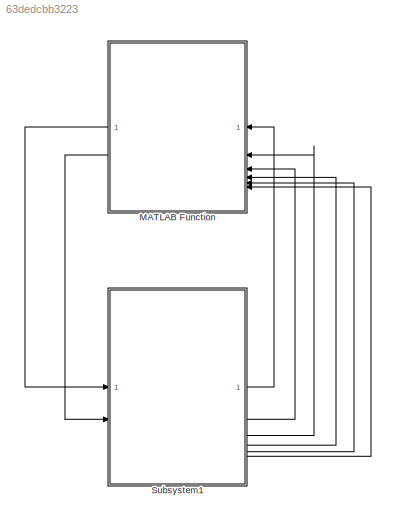
MODEL slx_63dedcbb3223
KIND model
CONFIG AbsTol = 1e-3
CONFIG EnableMultiTasking = on
CONFIG FixedStep = auto
CONFIG MaxStep = auto
CONFIG MinStep = auto
CONFIG RelTol = 1e-3
CONFIG SampleTimeConstraint = Unconstrained
CONFIG SolverName = VariableStepAuto
CONFIG StartTime = 0.0
CONFIG StopTime = 100.0
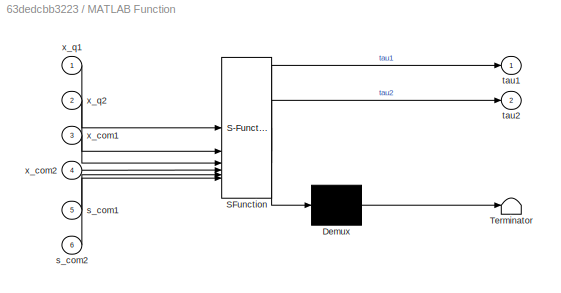
BLOCK [SubSystem] MATLAB Function
  ErrorFcn = Stateflow.Translate.translate
  LibrarySourceBlock = simulink/User-Defined\nFunctions/MATLAB Function
  PermitHierarchicalResolution = ExplicitOnly
  SFBlockType = MATLAB Function
  TreatAsAtomicUnit = on
BLOCK [Demux] MATLAB Function/ Demux 
  Outputs = 1
BLOCK [S-Function] MATLAB Function/ SFunction 
  EnableBusSupport = on
  FunctionName = sf_sfun
  PortCounts = [6 3]
  SFcnIsStateOwnerBlock = off
  SFunctionDeploymentMode = off
  Tag = Stateflow S-Function 2
BLOCK [Terminator] MATLAB Function/ Terminator 
BLOCK [Inport] MATLAB Function/s_com1
  Port = 5
BLOCK [Inport] MATLAB Function/s_com2
  Port = 6
BLOCK [Outport] MATLAB Function/tau1
BLOCK [Outport] MATLAB Function/tau2
  Port = 2
BLOCK [Inport] MATLAB Function/x_com1
  Port = 3
BLOCK [Inport] MATLAB Function/x_com2
  Port = 4
BLOCK [Inport] MATLAB Function/x_q1
BLOCK [Inport] MATLAB Function/x_q2
  Port = 2
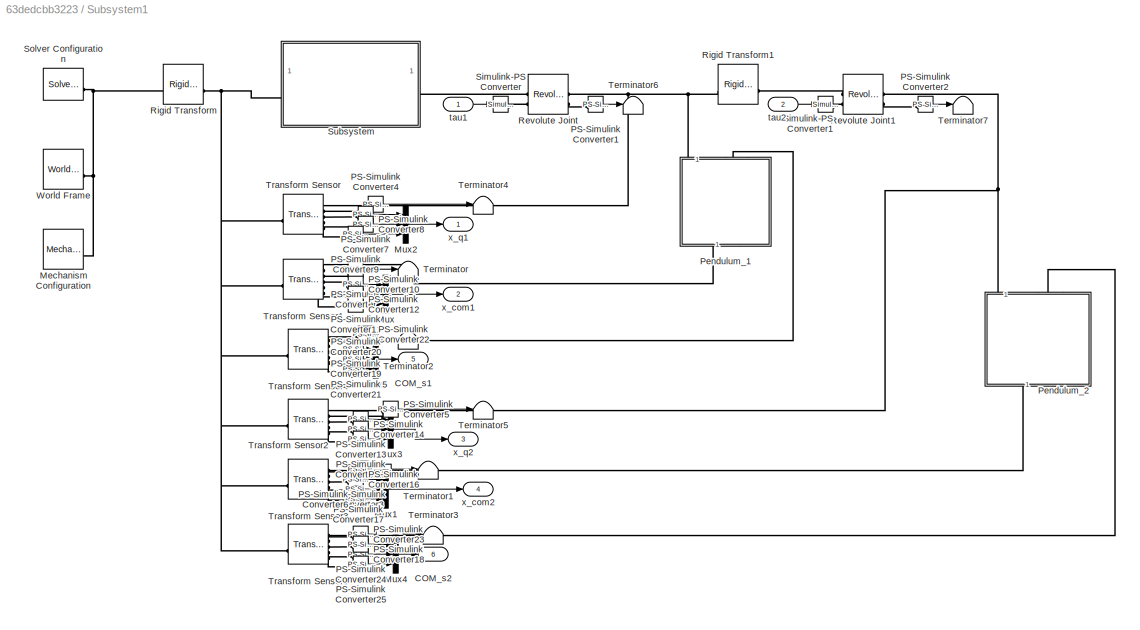
BLOCK [SubSystem] Subsystem1
BLOCK [Outport] Subsystem1/COM_s1
  Port = 5
BLOCK [Outport] Subsystem1/COM_s2
  Port = 6
BLOCK [Reference] Subsystem1/Mechanism Configuration  REF=sm_lib/Utilities/Mechanism
Configuration
  SourceBlock = sm_lib/Utilities/Mechanism\nConfiguration
  SourceType = Mechanism\nConfiguration
BLOCK [Mux] Subsystem1/Mux
  DisplayOption = bar
  Inputs = 3
BLOCK [Mux] Subsystem1/Mux1
  DisplayOption = bar
  Inputs = 3
BLOCK [Mux] Subsystem1/Mux2
  DisplayOption = bar
  Inputs = 3
BLOCK [Mux] Subsystem1/Mux3
  DisplayOption = bar
  Inputs = 3
BLOCK [Mux] Subsystem1/Mux4
  DisplayOption = bar
  Inputs = 3
BLOCK [Mux] Subsystem1/Mux5
  DisplayOption = bar
  Inputs = 3
BLOCK [Reference] Subsystem1/PS-Simulink Converter  REF=nesl_utility/PS-Simulink
Converter
  SourceBlock = nesl_utility/PS-Simulink\nConverter
  SourceType = PS-Simulink\nConverter
BLOCK [Reference] Subsystem1/PS-Simulink Converter1  REF=nesl_utility/PS-Simulink
Converter
  SourceBlock = nesl_utility/PS-Simulink\nConverter
  SourceType = PS-Simulink\nConverter
BLOCK [Reference] Subsystem1/PS-Simulink Converter10  REF=nesl_utility/PS-Simulink
Converter
  SourceBlock = nesl_utility/PS-Simulink\nConverter
  SourceType = PS-Simulink\nConverter
BLOCK [Reference] Subsystem1/PS-Simulink Converter11  REF=nesl_utility/PS-Simulink
Converter
  SourceBlock = nesl_utility/PS-Simulink\nConverter
  SourceType = PS-Simulink\nConverter
BLOCK [Reference] Subsystem1/PS-Simulink Converter12  REF=nesl_utility/PS-Simulink
Converter
  SourceBlock = nesl_utility/PS-Simulink\nConverter
  SourceType = PS-Simulink\nConverter
BLOCK [Reference] Subsystem1/PS-Simulink Converter13  REF=nesl_utility/PS-Simulink
Converter
  SourceBlock = nesl_utility/PS-Simulink\nConverter
  SourceType = PS-Simulink\nConverter
BLOCK [Reference] Subsystem1/PS-Simulink Converter14  REF=nesl_utility/PS-Simulink
Converter
  SourceBlock = nesl_utility/PS-Simulink\nConverter
  SourceType = PS-Simulink\nConverter
BLOCK [Reference] Subsystem1/PS-Simulink Converter15  REF=nesl_utility/PS-Simulink
Converter
  SourceBlock = nesl_utility/PS-Simulink\nConverter
  SourceType = PS-Simulink\nConverter
BLOCK [Reference] Subsystem1/PS-Simulink Converter16  REF=nesl_utility/PS-Simulink
Converter
  SourceBlock = nesl_utility/PS-Simulink\nConverter
  SourceType = PS-Simulink\nConverter
BLOCK [Reference] Subsystem1/PS-Simulink Converter17  REF=nesl_utility/PS-Simulink
Converter
  SourceBlock = nesl_utility/PS-Simulink\nConverter
  SourceType = PS-Simulink\nConverter
BLOCK [Reference] Subsystem1/PS-Simulink Converter18  REF=nesl_utility/PS-Simulink
Converter
  SourceBlock = nesl_utility/PS-Simulink\nConverter
  SourceType = PS-Simulink\nConverter
BLOCK [Reference] Subsystem1/PS-Simulink Converter19  REF=nesl_utility/PS-Simulink
Converter
  SourceBlock = nesl_utility/PS-Simulink\nConverter
  SourceType = PS-Simulink\nConverter
BLOCK [Reference] Subsystem1/PS-Simulink Converter2  REF=nesl_utility/PS-Simulink
Converter
  SourceBlock = nesl_utility/PS-Simulink\nConverter
  SourceType = PS-Simulink\nConverter
BLOCK [Reference] Subsystem1/PS-Simulink Converter20  REF=nesl_utility/PS-Simulink
Converter
  SourceBlock = nesl_utility/PS-Simulink\nConverter
  SourceType = PS-Simulink\nConverter
BLOCK [Reference] Subsystem1/PS-Simulink Converter21  REF=nesl_utility/PS-Simulink
Converter
  SourceBlock = nesl_utility/PS-Simulink\nConverter
  SourceType = PS-Simulink\nConverter
BLOCK [Reference] Subsystem1/PS-Simulink Converter22  REF=nesl_utility/PS-Simulink
Converter
  SourceBlock = nesl_utility/PS-Simulink\nConverter
  SourceType = PS-Simulink\nConverter
BLOCK [Reference] Subsystem1/PS-Simulink Converter23  REF=nesl_utility/PS-Simulink
Converter
  SourceBlock = nesl_utility/PS-Simulink\nConverter
  SourceType = PS-Simulink\nConverter
BLOCK [Reference] Subsystem1/PS-Simulink Converter24  REF=nesl_utility/PS-Simulink
Converter
  SourceBlock = nesl_utility/PS-Simulink\nConverter
  SourceType = PS-Simulink\nConverter
BLOCK [Reference] Subsystem1/PS-Simulink Converter25  REF=nesl_utility/PS-Simulink
Converter
  SourceBlock = nesl_utility/PS-Simulink\nConverter
  SourceType = PS-Simulink\nConverter
BLOCK [Reference] Subsystem1/PS-Simulink Converter3  REF=nesl_utility/PS-Simulink
Converter
  SourceBlock = nesl_utility/PS-Simulink\nConverter
  SourceType = PS-Simulink\nConverter
BLOCK [Reference] Subsystem1/PS-Simulink Converter4  REF=nesl_utility/PS-Simulink
Converter
  SourceBlock = nesl_utility/PS-Simulink\nConverter
  SourceType = PS-Simulink\nConverter
BLOCK [Reference] Subsystem1/PS-Simulink Converter5  REF=nesl_utility/PS-Simulink
Converter
  SourceBlock = nesl_utility/PS-Simulink\nConverter
  SourceType = PS-Simulink\nConverter
BLOCK [Reference] Subsystem1/PS-Simulink Converter6  REF=nesl_utility/PS-Simulink
Converter
  SourceBlock = nesl_utility/PS-Simulink\nConverter
  SourceType = PS-Simulink\nConverter
BLOCK [Reference] Subsystem1/PS-Simulink Converter7  REF=nesl_utility/PS-Simulink
Converter
  SourceBlock = nesl_utility/PS-Simulink\nConverter
  SourceType = PS-Simulink\nConverter
BLOCK [Reference] Subsystem1/PS-Simulink Converter8  REF=nesl_utility/PS-Simulink
Converter
  SourceBlock = nesl_utility/PS-Simulink\nConverter
  SourceType = PS-Simulink\nConverter
BLOCK [Reference] Subsystem1/PS-Simulink Converter9  REF=nesl_utility/PS-Simulink
Converter
  SourceBlock = nesl_utility/PS-Simulink\nConverter
  SourceType = PS-Simulink\nConverter
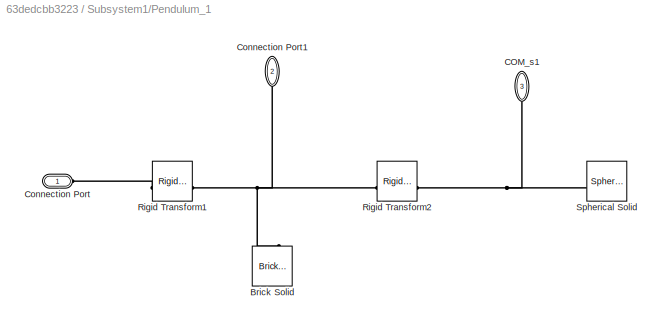
BLOCK [SubSystem] Subsystem1/Pendulum_1
  NameLocation = left
BLOCK [Reference] Subsystem1/Pendulum_1/Brick Solid  REF=sm_lib/Body Elements/Brick Solid
  NameLocation = right
  SourceBlock = sm_lib/Body Elements/Brick Solid
  SourceType = Brick Solid
BLOCK [PMIOPort] Subsystem1/Pendulum_1/COM_s1
  NameLocation = left
  Port = 3
  Side = Left
BLOCK [PMIOPort] Subsystem1/Pendulum_1/Connection Port
  Side = Left
BLOCK [PMIOPort] Subsystem1/Pendulum_1/Connection Port1
  NameLocation = left
  Port = 2
  Side = Right
BLOCK [Reference] Subsystem1/Pendulum_1/Rigid Transform1  REF=sm_lib/Frames and
Transforms/Rigid
Transform
  SourceBlock = sm_lib/Frames and\nTransforms/Rigid\nTransform
  SourceType = Rigid\nTransform
BLOCK [Reference] Subsystem1/Pendulum_1/Rigid Transform2  REF=sm_lib/Frames and
Transforms/Rigid
Transform
  SourceBlock = sm_lib/Frames and\nTransforms/Rigid\nTransform
  SourceType = Rigid\nTransform
BLOCK [Reference] Subsystem1/Pendulum_1/Spherical Solid  REF=sm_lib/Body Elements/Spherical Solid
  SourceBlock = sm_lib/Body Elements/Spherical Solid
  SourceType = Spherical Solid
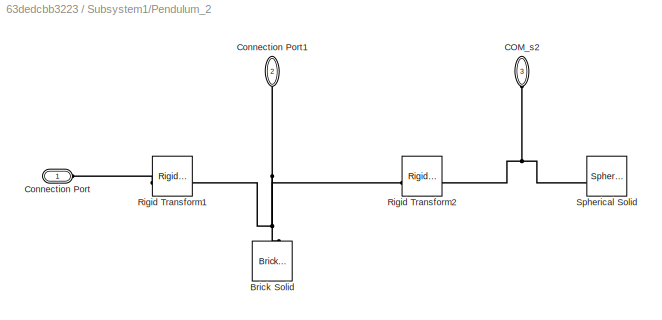
BLOCK [SubSystem] Subsystem1/Pendulum_2
  NameLocation = left
BLOCK [Reference] Subsystem1/Pendulum_2/Brick Solid  REF=sm_lib/Body Elements/Brick Solid
  NameLocation = right
  SourceBlock = sm_lib/Body Elements/Brick Solid
  SourceType = Brick Solid
BLOCK [PMIOPort] Subsystem1/Pendulum_2/COM_s2
  NameLocation = left
  Port = 3
  Side = Left
BLOCK [PMIOPort] Subsystem1/Pendulum_2/Connection Port
  Side = Left
BLOCK [PMIOPort] Subsystem1/Pendulum_2/Connection Port1
  NameLocation = left
  Port = 2
  Side = Right
BLOCK [Reference] Subsystem1/Pendulum_2/Rigid Transform1  REF=sm_lib/Frames and
Transforms/Rigid
Transform
  SourceBlock = sm_lib/Frames and\nTransforms/Rigid\nTransform
  SourceType = Rigid\nTransform
BLOCK [Reference] Subsystem1/Pendulum_2/Rigid Transform2  REF=sm_lib/Frames and
Transforms/Rigid
Transform
  SourceBlock = sm_lib/Frames and\nTransforms/Rigid\nTransform
  SourceType = Rigid\nTransform
BLOCK [Reference] Subsystem1/Pendulum_2/Spherical Solid  REF=sm_lib/Body Elements/Spherical Solid
  SourceBlock = sm_lib/Body Elements/Spherical Solid
  SourceType = Spherical Solid
BLOCK [Reference] Subsystem1/Revolute Joint  REF=sm_lib/Joints/Revolute Joint
  SourceBlock = sm_lib/Joints/Revolute Joint
  SourceType = Revolute Joint
BLOCK [Reference] Subsystem1/Revolute Joint1  REF=sm_lib/Joints/Revolute Joint
  SourceBlock = sm_lib/Joints/Revolute Joint
  SourceType = Revolute Joint
BLOCK [Reference] Subsystem1/Rigid Transform  REF=sm_lib/Frames and
Transforms/Rigid
Transform
  SourceBlock = sm_lib/Frames and\nTransforms/Rigid\nTransform
  SourceType = Rigid\nTransform
BLOCK [Reference] Subsystem1/Rigid Transform1  REF=sm_lib/Frames and
Transforms/Rigid
Transform
  SourceBlock = sm_lib/Frames and\nTransforms/Rigid\nTransform
  SourceType = Rigid\nTransform
BLOCK [Reference] Subsystem1/Simulink-PS Converter  REF=nesl_utility/Simulink-PS
Converter
  SourceBlock = nesl_utility/Simulink-PS\nConverter
  SourceType = Simulink-PS\nConverter
BLOCK [Reference] Subsystem1/Simulink-PS Converter1  REF=nesl_utility/Simulink-PS
Converter
  SourceBlock = nesl_utility/Simulink-PS\nConverter
  SourceType = Simulink-PS\nConverter
BLOCK [Reference] Subsystem1/Solver Configuration  REF=nesl_utility/Solver
Configuration
  SourceBlock = nesl_utility/Solver\nConfiguration
  SourceType = Solver\nConfiguration
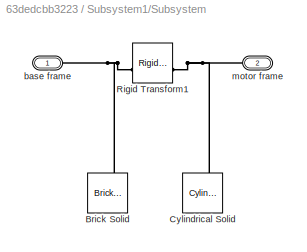
BLOCK [SubSystem] Subsystem1/Subsystem
BLOCK [Reference] Subsystem1/Subsystem/Brick Solid  REF=sm_lib/Body Elements/Brick Solid
  SourceBlock = sm_lib/Body Elements/Brick Solid
  SourceType = Brick Solid
BLOCK [Reference] Subsystem1/Subsystem/Cylindrical Solid  REF=sm_lib/Body Elements/Cylindrical Solid
  NameLocation = right
  SourceBlock = sm_lib/Body Elements/Cylindrical Solid
  SourceType = Cylindrical Solid
BLOCK [Reference] Subsystem1/Subsystem/Rigid Transform1  REF=sm_lib/Frames and
Transforms/Rigid
Transform
  SourceBlock = sm_lib/Frames and\nTransforms/Rigid\nTransform
  SourceType = Rigid\nTransform
BLOCK [PMIOPort] Subsystem1/Subsystem/base frame
  Side = Left
BLOCK [PMIOPort] Subsystem1/Subsystem/motor frame
  Port = 2
  Side = Right
BLOCK [Terminator] Subsystem1/Terminator
BLOCK [Terminator] Subsystem1/Terminator1
BLOCK [Terminator] Subsystem1/Terminator2
BLOCK [Terminator] Subsystem1/Terminator3
BLOCK [Terminator] Subsystem1/Terminator4
BLOCK [Terminator] Subsystem1/Terminator5
BLOCK [Terminator] Subsystem1/Terminator6
BLOCK [Terminator] Subsystem1/Terminator7
BLOCK [Reference] Subsystem1/Transform Sensor  REF=sm_lib/Frames and
Transforms/Transform
Sensor
  SourceBlock = sm_lib/Frames and\nTransforms/Transform\nSensor
  SourceType = Transform\nSensor
BLOCK [Reference] Subsystem1/Transform Sensor1  REF=sm_lib/Frames and
Transforms/Transform
Sensor
  SourceBlock = sm_lib/Frames and\nTransforms/Transform\nSensor
  SourceType = Transform\nSensor
BLOCK [Reference] Subsystem1/Transform Sensor2  REF=sm_lib/Frames and
Transforms/Transform
Sensor
  SourceBlock = sm_lib/Frames and\nTransforms/Transform\nSensor
  SourceType = Transform\nSensor
BLOCK [Reference] Subsystem1/Transform Sensor3  REF=sm_lib/Frames and
Transforms/Transform
Sensor
  SourceBlock = sm_lib/Frames and\nTransforms/Transform\nSensor
  SourceType = Transform\nSensor
BLOCK [Reference] Subsystem1/Transform Sensor4  REF=sm_lib/Frames and
Transforms/Transform
Sensor
  SourceBlock = sm_lib/Frames and\nTransforms/Transform\nSensor
  SourceType = Transform\nSensor
BLOCK [Reference] Subsystem1/Transform Sensor5  REF=sm_lib/Frames and
Transforms/Transform
Sensor
  SourceBlock = sm_lib/Frames and\nTransforms/Transform\nSensor
  SourceType = Transform\nSensor
BLOCK [Reference] Subsystem1/World Frame  REF=sm_lib/Frames and
Transforms/World Frame
  SourceBlock = sm_lib/Frames and\nTransforms/World Frame
  SourceType = World Frame
BLOCK [Inport] Subsystem1/tau1
BLOCK [Inport] Subsystem1/tau2
  Port = 2
BLOCK [Outport] Subsystem1/x_com1
  Port = 2
BLOCK [Outport] Subsystem1/x_com2
  Port = 4
BLOCK [Outport] Subsystem1/x_q1
BLOCK [Outport] Subsystem1/x_q2
  Port = 3
LINE MATLAB Function:1 -> Subsystem1:1
LINE MATLAB Function:2 -> Subsystem1:2
LINE Subsystem1/Mux1:1 -> Subsystem1/x_com2:1
LINE Subsystem1/Mux2:1 -> Subsystem1/x_q1:1
LINE Subsystem1/Mux3:1 -> Subsystem1/x_q2:1
LINE Subsystem1/Mux4:1 -> Subsystem1/COM_s2:1
LINE Subsystem1/Mux5:1 -> Subsystem1/COM_s1:1
LINE Subsystem1/Mux:1 -> Subsystem1/x_com1:1
LINE Subsystem1/PS-Simulink Converter10:1 -> Subsystem1/Mux:1
LINE Subsystem1/PS-Simulink Converter11:1 -> Subsystem1/Mux:2
LINE Subsystem1/PS-Simulink Converter12:1 -> Subsystem1/Mux:3
LINE Subsystem1/PS-Simulink Converter13:1 -> Subsystem1/Mux3:1
LINE Subsystem1/PS-Simulink Converter14:1 -> Subsystem1/Mux3:2
LINE Subsystem1/PS-Simulink Converter15:1 -> Subsystem1/Mux3:3
LINE Subsystem1/PS-Simulink Converter16:1 -> Subsystem1/Mux1:1
LINE Subsystem1/PS-Simulink Converter17:1 -> Subsystem1/Mux1:2
LINE Subsystem1/PS-Simulink Converter18:1 -> Subsystem1/Mux4:2
LINE Subsystem1/PS-Simulink Converter19:1 -> Subsystem1/Mux5:1
LINE Subsystem1/PS-Simulink Converter1:1 -> Subsystem1/Terminator6:1
LINE Subsystem1/PS-Simulink Converter20:1 -> Subsystem1/Mux5:3
LINE Subsystem1/PS-Simulink Converter21:1 -> Subsystem1/Mux5:2
LINE Subsystem1/PS-Simulink Converter22:1 -> Subsystem1/Terminator2:1
LINE Subsystem1/PS-Simulink Converter23:1 -> Subsystem1/Terminator3:1
LINE Subsystem1/PS-Simulink Converter24:1 -> Subsystem1/Mux4:1
LINE Subsystem1/PS-Simulink Converter25:1 -> Subsystem1/Mux4:3
LINE Subsystem1/PS-Simulink Converter2:1 -> Subsystem1/Terminator7:1
LINE Subsystem1/PS-Simulink Converter3:1 -> Subsystem1/Terminator1:1
LINE Subsystem1/PS-Simulink Converter4:1 -> Subsystem1/Terminator4:1
LINE Subsystem1/PS-Simulink Converter5:1 -> Subsystem1/Terminator5:1
LINE Subsystem1/PS-Simulink Converter6:1 -> Subsystem1/Mux1:3
LINE Subsystem1/PS-Simulink Converter7:1 -> Subsystem1/Mux2:1
LINE Subsystem1/PS-Simulink Converter8:1 -> Subsystem1/Mux2:2
LINE Subsystem1/PS-Simulink Converter9:1 -> Subsystem1/Mux2:3
LINE Subsystem1/PS-Simulink Converter:1 -> Subsystem1/Terminator:1
LINE Subsystem1/tau1:1 -> Subsystem1/Simulink-PS Converter:1
LINE Subsystem1/tau2:1 -> Subsystem1/Simulink-PS Converter1:1
LINE Subsystem1:1 -> MATLAB Function:1
LINE Subsystem1:2 -> MATLAB Function:3
LINE Subsystem1:3 -> MATLAB Function:2
LINE Subsystem1:4 -> MATLAB Function:4
LINE Subsystem1:5 -> MATLAB Function:5
LINE Subsystem1:6 -> MATLAB Function:6
PNET net1: Subsystem1/Mechanism Configuration:RConn1 -- Subsystem1/Rigid Transform:LConn1 -- Subsystem1/Solver Configuration:RConn1 -- Subsystem1/World Frame:RConn1
PLINE Subsystem1/PS-Simulink Converter10:LConn1 -- Subsystem1/Transform Sensor1:RConn3
PLINE Subsystem1/PS-Simulink Converter11:LConn1 -- Subsystem1/Transform Sensor1:RConn4
PLINE Subsystem1/PS-Simulink Converter12:LConn1 -- Subsystem1/Transform Sensor1:RConn5
PLINE Subsystem1/PS-Simulink Converter13:LConn1 -- Subsystem1/Transform Sensor2:RConn3
PLINE Subsystem1/PS-Simulink Converter14:LConn1 -- Subsystem1/Transform Sensor2:RConn4
PLINE Subsystem1/PS-Simulink Converter15:LConn1 -- Subsystem1/Transform Sensor2:RConn5
PLINE Subsystem1/PS-Simulink Converter16:LConn1 -- Subsystem1/Transform Sensor3:RConn3
PLINE Subsystem1/PS-Simulink Converter17:LConn1 -- Subsystem1/Transform Sensor3:RConn4
PLINE Subsystem1/PS-Simulink Converter18:LConn1 -- Subsystem1/Transform Sensor5:RConn4
PLINE Subsystem1/PS-Simulink Converter19:LConn1 -- Subsystem1/Transform Sensor4:RConn3
PLINE Subsystem1/PS-Simulink Converter1:LConn1 -- Subsystem1/Revolute Joint:RConn2
PLINE Subsystem1/PS-Simulink Converter20:LConn1 -- Subsystem1/Transform Sensor4:RConn5
PLINE Subsystem1/PS-Simulink Converter21:LConn1 -- Subsystem1/Transform Sensor4:RConn4
PLINE Subsystem1/PS-Simulink Converter22:LConn1 -- Subsystem1/Transform Sensor4:RConn2
PLINE Subsystem1/PS-Simulink Converter23:LConn1 -- Subsystem1/Transform Sensor5:RConn2
PLINE Subsystem1/PS-Simulink Converter24:LConn1 -- Subsystem1/Transform Sensor5:RConn3
PLINE Subsystem1/PS-Simulink Converter25:LConn1 -- Subsystem1/Transform Sensor5:RConn5
PLINE Subsystem1/PS-Simulink Converter2:LConn1 -- Subsystem1/Revolute Joint1:RConn2
PLINE Subsystem1/PS-Simulink Converter3:LConn1 -- Subsystem1/Transform Sensor3:RConn2
PLINE Subsystem1/PS-Simulink Converter4:LConn1 -- Subsystem1/Transform Sensor:RConn2
PLINE Subsystem1/PS-Simulink Converter5:LConn1 -- Subsystem1/Transform Sensor2:RConn2
PLINE Subsystem1/PS-Simulink Converter6:LConn1 -- Subsystem1/Transform Sensor3:RConn5
PLINE Subsystem1/PS-Simulink Converter7:LConn1 -- Subsystem1/Transform Sensor:RConn3
PLINE Subsystem1/PS-Simulink Converter8:LConn1 -- Subsystem1/Transform Sensor:RConn4
PLINE Subsystem1/PS-Simulink Converter9:LConn1 -- Subsystem1/Transform Sensor:RConn5
PLINE Subsystem1/PS-Simulink Converter:LConn1 -- Subsystem1/Transform Sensor1:RConn2
PNET net2: Subsystem1/Pendulum_1/Brick Solid:RConn1 -- Subsystem1/Pendulum_1/Connection Port1:RConn1 -- Subsystem1/Pendulum_1/Rigid Transform1:LConn1 -- Subsystem1/Pendulum_1/Rigid Transform2:LConn1
PNET net3: Subsystem1/Pendulum_1/COM_s1:RConn1 -- Subsystem1/Pendulum_1/Rigid Transform2:RConn1 -- Subsystem1/Pendulum_1/Spherical Solid:RConn1
PLINE Subsystem1/Pendulum_1/Connection Port:RConn1 -- Subsystem1/Pendulum_1/Rigid Transform1:RConn1
PNET net4: Subsystem1/Pendulum_1:LConn1 -- Subsystem1/Revolute Joint:RConn1 -- Subsystem1/Rigid Transform1:LConn1 -- Subsystem1/Transform Sensor:RConn1
PLINE Subsystem1/Pendulum_1:LConn2 -- Subsystem1/Transform Sensor4:RConn1
PLINE Subsystem1/Pendulum_1:RConn1 -- Subsystem1/Transform Sensor1:RConn1
PNET net5: Subsystem1/Pendulum_2/Brick Solid:RConn1 -- Subsystem1/Pendulum_2/Connection Port1:RConn1 -- Subsystem1/Pendulum_2/Rigid Transform1:LConn1 -- Subsystem1/Pendulum_2/Rigid Transform2:LConn1
PNET net6: Subsystem1/Pendulum_2/COM_s2:RConn1 -- Subsystem1/Pendulum_2/Rigid Transform2:RConn1 -- Subsystem1/Pendulum_2/Spherical Solid:RConn1
PLINE Subsystem1/Pendulum_2/Connection Port:RConn1 -- Subsystem1/Pendulum_2/Rigid Transform1:RConn1
PNET net7: Subsystem1/Pendulum_2:LConn1 -- Subsystem1/Revolute Joint1:RConn1 -- Subsystem1/Transform Sensor2:RConn1
PLINE Subsystem1/Pendulum_2:LConn2 -- Subsystem1/Transform Sensor5:RConn1
PLINE Subsystem1/Pendulum_2:RConn1 -- Subsystem1/Transform Sensor3:RConn1
PLINE Subsystem1/Revolute Joint1:LConn1 -- Subsystem1/Rigid Transform1:RConn1
PLINE Subsystem1/Revolute Joint1:LConn2 -- Subsystem1/Simulink-PS Converter1:RConn1
PLINE Subsystem1/Revolute Joint:LConn1 -- Subsystem1/Subsystem:RConn1
PLINE Subsystem1/Revolute Joint:LConn2 -- Subsystem1/Simulink-PS Converter:RConn1
PNET net8: Subsystem1/Rigid Transform:RConn1 -- Subsystem1/Subsystem:LConn1 -- Subsystem1/Transform Sensor1:LConn1 -- Subsystem1/Transform Sensor2:LConn1 -- Subsystem1/Transform Sensor3:LConn1 -- Subsystem1/Transform Sensor4:LConn1 -- Subsystem1/Transform Sensor5:LConn1 -- Subsystem1/Transform Sensor:LConn1
PNET net9: Subsystem1/Subsystem/Brick Solid:RConn1 -- Subsystem1/Subsystem/Rigid Transform1:LConn1 -- Subsystem1/Subsystem/base frame:RConn1
PNET net10: Subsystem1/Subsystem/Cylindrical Solid:RConn1 -- Subsystem1/Subsystem/Rigid Transform1:RConn1 -- Subsystem1/Subsystem/motor frame:RConn1
note: PNET lines group multi-terminal physical nets as a canonical sorted terminal list (undirected conserving connections); 2-terminal nets keep the pairwise PLINE form
CHART MATLAB Function states=1 transitions=1
  STATE_LABEL 'eML_blk_kernel()'
  STATE_LABEL 'SCRIPT:\nfunction [tau1,tau2]= fcn(x_q1,x_q2,x_com1,x_com2,s_com1,s_com2)\n\nm1 = 2; %mass of the links1\nm2 = 0; %mass of the sfera1\nm3 = 1; %mass of the links2\nm4 = 0; %mass of the sfera2\n\ng1 = [0; 0; -9.81];\n\nF1 = m1 * g1;\nF2 = m2 * g1;\nF3 = m3 * g1;\nF4 = m4 * g1;\nF = [F1; F2; F3; F4];\n\nk1 = [0; 0; -1]; %along z\nk2 = [0; 1; 0]; %along y\n\nr_1_1_l = x_com1 - x_q1; %distanza asta1 e frame1\nr_1_1_s = s...<+577ch>'
CHART  states=0 transitions=0
